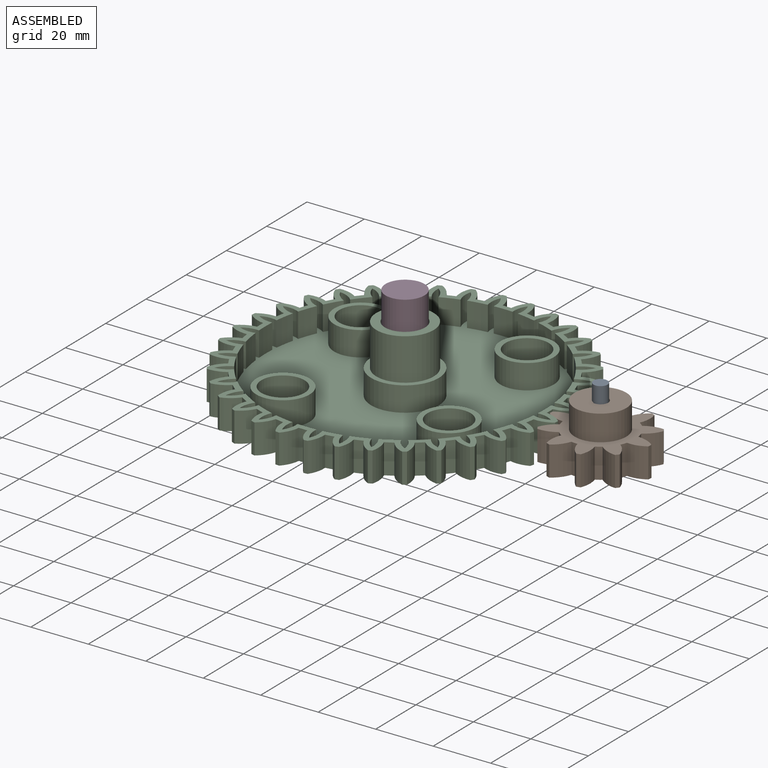
[diagram: assembled view]
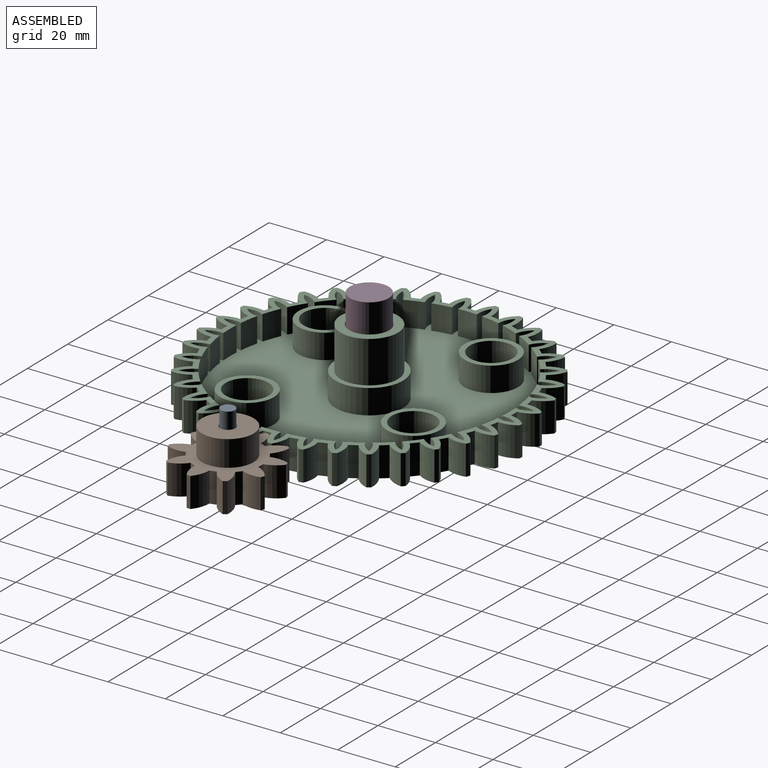
[diagram: assembled view, second angle]
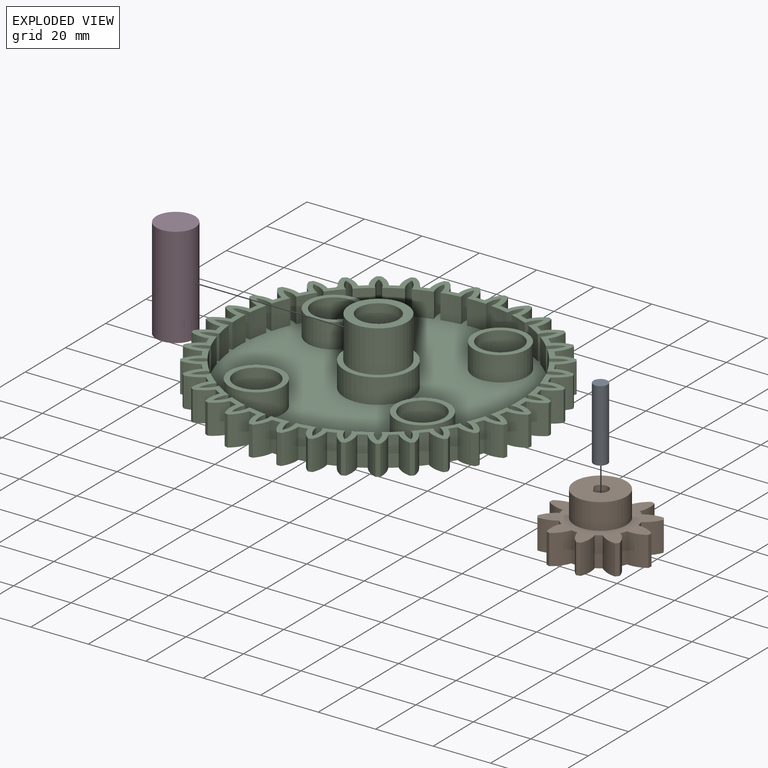
[diagram: exploded view]
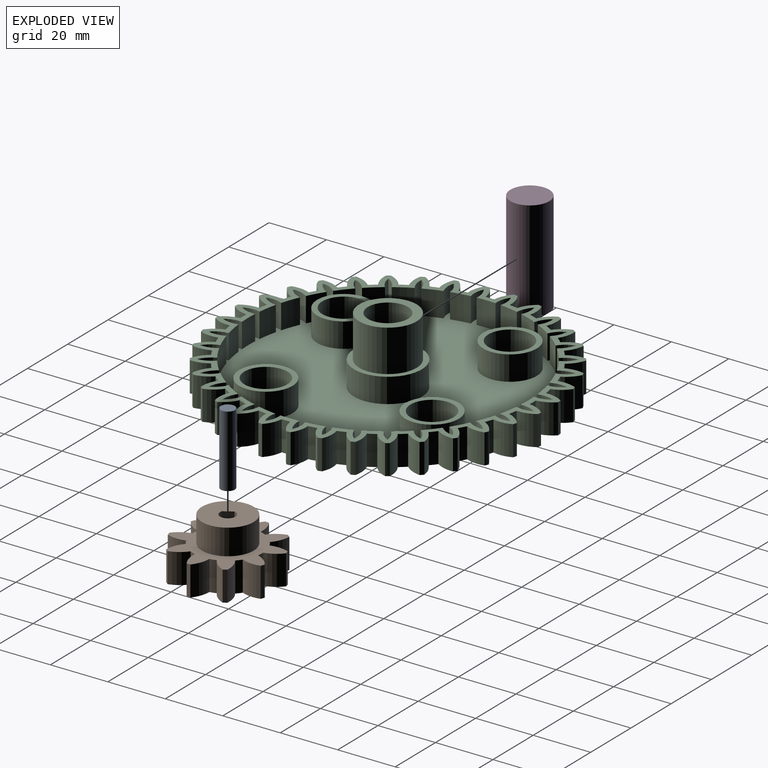
[diagram: exploded view, second angle]
ASSEMBLY  parts=4 mates=2
PART A: 3 faces, bbox 4.9x4.9x25 mm
  f0: cylinder r=2.45mm len=25mm, axis (0,0,-1), area 384.8mm2, adj f1,f2
  f1: plane 4.9x4.9mm, normal (0,0,1), area 18.9mm2, adj f0
  f2: plane 4.9x4.9mm, normal (0,0,-1), area 18.9mm2, adj f0
PART B: 46 faces, bbox 35.3x36x19.4 mm
  f0: cylinder r=2.7mm len=19.4mm, axis (0,0,1), area 251.9mm2, adj f41,f42,f45
  f1: cylinder r=10mm len=10.4mm, axis (0,0,1), area 69.7mm2, adj f2,f40,f42,f43
  f2: cylinder r=12mm len=10.4mm, axis (0,0,1), area 23.4mm2, adj f1,f3,f42,f43
  f3: cylinder r=10mm len=10.4mm, axis (0,0,1), area 69.7mm2, adj f2,f4,f42,f43
  f4: plane 10.4x1.19mm, normal (0.53,-0.85,0), area 14.6mm2, adj f3,f5,f42,f43
  f5: cylinder r=10mm len=10.4mm, axis (0,0,1), area 69.7mm2, adj f4,f6,f42,f43
  f6: cylinder r=12mm len=10.4mm, axis (0,0,1), area 23.4mm2, adj f5,f7,f42,f43
  f7: cylinder r=10mm len=10.4mm, axis (0,0,1), area 69.7mm2, adj f6,f8,f42,f43
  f8: plane 10.4x1.3mm, normal (0.93,-0.37,0), area 14.6mm2, adj f7,f9,f42,f43
  f9: cylinder r=10mm len=10.4mm, axis (0,0,1), area 69.7mm2, adj f8,f10,f42,f43
  f10: cylinder r=12mm len=10.4mm, axis (0,0,1), area 23.4mm2, adj f9,f11,f42,f43
  f11: cylinder r=10mm len=10.4mm, axis (0,0,1), area 69.7mm2, adj f10,f12,f42,f43
  f12: plane 10.4x1.36mm, normal (0.97,0.24,0), area 14.6mm2, adj f11,f13,f42,f43
  f13: cylinder r=10mm len=10.4mm, axis (0,0,1), area 69.7mm2, adj f12,f14,f42,f43
  f14: cylinder r=12mm len=10.4mm, axis (0,0,1), area 23.4mm2, adj f13,f15,f42,f43
  f15: cylinder r=10mm len=10.4mm, axis (0,0,1), area 69.7mm2, adj f14,f16,f42,f43
  f16: plane 10.4x1.07mm, normal (0.64,0.77,0), area 14.6mm2, adj f15,f17,f42,f43
  f17: cylinder r=10mm len=10.4mm, axis (0,0,1), area 69.7mm2, adj f16,f18,f42,f43
  f18: cylinder r=12mm len=10.4mm, axis (0,0,1), area 23.4mm2, adj f17,f19,f42,f43
  f19: cylinder r=10mm len=10.4mm, axis (0,0,1), area 69.7mm2, adj f18,f20,f42,f43
  f20: plane 10.4x1.4mm, normal (0.07,1,0), area 14.6mm2, adj f19,f21,f42,f43
  f21: cylinder r=10mm len=10.4mm, axis (0,0,1), area 69.7mm2, adj f20,f22,f42,f43
  f22: cylinder r=12mm len=10.4mm, axis (0,0,1), area 23.4mm2, adj f21,f23,f42,f43
  f23: cylinder r=10mm len=10.4mm, axis (0,0,1), area 69.7mm2, adj f22,f24,f42,f43
  f24: plane 10.4x1.19mm, normal (-0.53,0.85,0), area 14.6mm2, adj f23,f25,f42,f43
  f25: cylinder r=10mm len=10.4mm, axis (0,0,1), area 69.7mm2, adj f24,f26,f42,f43
  f26: cylinder r=12mm len=10.4mm, axis (0,0,1), area 23.4mm2, adj f25,f27,f42,f43
  f27: cylinder r=10mm len=10.4mm, axis (0,0,1), area 69.7mm2, adj f26,f28,f42,f43
  f28: plane 10.4x1.3mm, normal (-0.93,0.37,0), area 14.6mm2, adj f27,f29,f42,f43
  f29: cylinder r=10mm len=10.4mm, axis (0,0,1), area 69.7mm2, adj f28,f30,f42,f43
  f30: cylinder r=12mm len=10.4mm, axis (0,0,1), area 23.4mm2, adj f29,f31,f42,f43
  f31: cylinder r=10mm len=10.4mm, axis (0,0,1), area 69.7mm2, adj f30,f32,f42,f43
  f32: plane 10.4x1.36mm, normal (-0.97,-0.24,0), area 14.6mm2, adj f31,f33,f42,f43
  f33: cylinder r=10mm len=10.4mm, axis (0,0,1), area 69.7mm2, adj f32,f34,f42,f43
  f34: cylinder r=12mm len=10.4mm, axis (0,0,1), area 23.4mm2, adj f33,f35,f42,f43
  f35: cylinder r=10mm len=10.4mm, axis (0,0,1), area 69.7mm2, adj f34,f36,f42,f43
  f36: plane 10.4x1.07mm, normal (-0.64,-0.77,0), area 14.6mm2, adj f35,f37,f42,f43
  f37: cylinder r=10mm len=10.4mm, axis (0,0,1), area 69.7mm2, adj f36,f38,f42,f43
  f38: cylinder r=12mm len=10.4mm, axis (0,0,1), area 23.4mm2, adj f37,f39,f42,f43
  f39: cylinder r=10mm len=10.4mm, axis (0,0,1), area 69.7mm2, adj f38,f40,f42,f43
  f40: plane 10.4x1.4mm, normal (-0.07,-1,0), area 14.6mm2, adj f1,f39,f42,f43
  f41: plane 19.4x3.36mm, normal (0.93,-0.37,0), area 70.4mm2, adj f0,f42,f45
  f42: plane 36.01x35.27mm, normal (0,0,-1), area 679.2mm2, adj f0,f1,f2,f3,f4,f5,f6,f7
  f43: plane 36.01x35.27mm, normal (0,0,1), area 445.8mm2, adj f1,f2,f3,f4,f5,f6,f7,f8
  f44: cylinder r=9mm len=18mm, axis (0,0,-1), area 508.9mm2, adj f43,f45
  f45: plane 18x18mm, normal (0,0,1), area 233.3mm2, adj f0,f41,f44
PART C: 312 faces, bbox 113x113x25 mm
  f0: plane 23.6x23.6mm, normal (0,0,1), area 123.3mm2, adj f302,f306
  f1: plane 18.6x18.6mm, normal (0,0,1), area 95mm2, adj f186,f301
  f2: plane 18.6x18.6mm, normal (0,0,1), area 95mm2, adj f185,f300
  f3: plane 18.6x18.6mm, normal (0,0,1), area 95mm2, adj f184,f299
  f4: plane 18.6x18.6mm, normal (0,0,1), area 95mm2, adj f188,f303
  f5: cylinder r=10mm len=10.4mm, axis (0,0,-1), area 68.5mm2, adj f6,f187,f189,f190
  f6: cylinder r=50.5mm len=10.4mm, axis (0,0,-1), area 31mm2, adj f5,f7,f189,f190
  f7: cylinder r=10mm len=10.4mm, axis (0,0,-1), area 68.5mm2, adj f6,f8,f189,f190
  f8: plane 10.4x0.69mm, normal (0.99,0.16,0), area 7.3mm2, adj f7,f9,f189,f190
  f9: plane 10.4x0.69mm, normal (0.98,0.19,0), area 7.3mm2, adj f8,f10,f189,f190
  f10: cylinder r=10mm len=10.4mm, axis (0,0,-1), area 68.5mm2, adj f9,f11,f189,f190
  f11: cylinder r=50.5mm len=10.4mm, axis (0,0,-1), area 31mm2, adj f10,f12,f189,f190
  f12: cylinder r=10mm len=10.4mm, axis (0,0,-1), area 68.5mm2, adj f11,f13,f189,f190
  f13: plane 10.4x0.66mm, normal (0.95,0.33,0), area 7.3mm2, adj f12,f14,f189,f190
  f14: plane 10.4x0.65mm, normal (0.93,0.36,0), area 7.3mm2, adj f13,f15,f189,f190
  f15: cylinder r=10mm len=10.4mm, axis (0,0,-1), area 68.5mm2, adj f14,f16,f189,f190
  f16: cylinder r=50.5mm len=10.4mm, axis (0,0,-1), area 31mm2, adj f15,f17,f189,f190
  f17: cylinder r=10mm len=10.4mm, axis (0,0,-1), area 68.5mm2, adj f16,f18,f189,f190
  f18: plane 10.4x0.61mm, normal (0.87,0.48,0), area 7.3mm2, adj f17,f19,f189,f190
  f19: plane 10.4x0.6mm, normal (0.86,0.52,0), area 7.3mm2, adj f18,f20,f189,f190
  f20: cylinder r=10mm len=10.4mm, axis (0,0,-1), area 68.5mm2, adj f19,f21,f189,f190
  f21: cylinder r=50.5mm len=10.4mm, axis (0,0,-1), area 31mm2, adj f20,f22,f189,f190
  f22: cylinder r=10mm len=10.4mm, axis (0,0,-1), area 68.5mm2, adj f21,f23,f189,f190
  f23: plane 10.4x0.54mm, normal (0.78,0.63,0), area 7.3mm2, adj f22,f24,f189,f190
  f24: plane 10.4x0.53mm, normal (0.75,0.66,0), area 7.3mm2, adj f23,f25,f189,f190
  f25: cylinder r=10mm len=10.4mm, axis (0,0,-1), area 68.5mm2, adj f24,f26,f189,f190
  f26: cylinder r=50.5mm len=10.4mm, axis (0,0,-1), area 31mm2, adj f25,f27,f189,f190
  f27: cylinder r=10mm len=10.4mm, axis (0,0,-1), area 68.5mm2, adj f26,f28,f189,f190
  f28: plane 10.4x0.53mm, normal (0.66,0.75,0), area 7.3mm2, adj f27,f29,f189,f190
  f29: plane 10.4x0.54mm, normal (0.63,0.78,0), area 7.3mm2, adj f28,f30,f189,f190
  f30: cylinder r=10mm len=10.4mm, axis (0,0,-1), area 68.5mm2, adj f29,f31,f189,f190
  f31: cylinder r=50.5mm len=10.4mm, axis (0,0,-1), area 31mm2, adj f30,f32,f189,f190
  f32: cylinder r=10mm len=10.4mm, axis (0,0,-1), area 68.5mm2, adj f31,f33,f189,f190
  f33: plane 10.4x0.6mm, normal (0.52,0.86,0), area 7.3mm2, adj f32,f34,f189,f190
  f34: plane 10.4x0.61mm, normal (0.48,0.87,0), area 7.3mm2, adj f33,f35,f189,f190
  f35: cylinder r=10mm len=10.4mm, axis (0,0,-1), area 68.5mm2, adj f34,f36,f189,f190
  f36: cylinder r=50.5mm len=10.4mm, axis (0,0,-1), area 31mm2, adj f35,f37,f189,f190
  f37: cylinder r=10mm len=10.4mm, axis (0,0,-1), area 68.5mm2, adj f36,f38,f189,f190
  f38: plane 10.4x0.65mm, normal (0.36,0.93,0), area 7.3mm2, adj f37,f39,f189,f190
  f39: plane 10.4x0.66mm, normal (0.33,0.95,0), area 7.3mm2, adj f38,f40,f189,f190
  f40: cylinder r=10mm len=10.4mm, axis (0,0,-1), area 68.5mm2, adj f39,f41,f189,f190
  f41: cylinder r=50.5mm len=10.4mm, axis (0,0,-1), area 31mm2, adj f40,f42,f189,f190
  f42: cylinder r=10mm len=10.4mm, axis (0,0,-1), area 68.5mm2, adj f41,f43,f189,f190
  f43: plane 10.4x0.69mm, normal (0.19,0.98,0), area 7.3mm2, adj f42,f44,f189,f190
  f44: plane 10.4x0.69mm, normal (0.16,0.99,0), area 7.3mm2, adj f43,f45,f189,f190
  f45: cylinder r=10mm len=10.4mm, axis (0,0,-1), area 68.5mm2, adj f44,f46,f189,f190
  f46: cylinder r=50.5mm len=10.4mm, axis (0,0,-1), area 31mm2, adj f45,f47,f189,f190
  f47: cylinder r=10mm len=10.4mm, axis (0,0,-1), area 68.5mm2, adj f46,f48,f189,f190
  f48: plane 10.4x0.7mm, normal (0.02,1,0), area 7.3mm2, adj f47,f49,f189,f190
  f49: plane 10.4x0.7mm, normal (-0.02,1,0), area 7.3mm2, adj f48,f50,f189,f190
  f50: cylinder r=10mm len=10.4mm, axis (0,0,-1), area 68.5mm2, adj f49,f51,f189,f190
  f51: cylinder r=50.5mm len=10.4mm, axis (0,0,-1), area 31mm2, adj f50,f52,f189,f190
  f52: cylinder r=10mm len=10.4mm, axis (0,0,-1), area 68.5mm2, adj f51,f53,f189,f190
  f53: plane 10.4x0.69mm, normal (-0.16,0.99,0), area 7.3mm2, adj f52,f54,f189,f190
  f54: plane 10.4x0.69mm, normal (-0.19,0.98,0), area 7.3mm2, adj f53,f55,f189,f190
  f55: cylinder r=10mm len=10.4mm, axis (0,0,-1), area 68.5mm2, adj f54,f56,f189,f190
  f56: cylinder r=50.5mm len=10.4mm, axis (0,0,-1), area 31mm2, adj f55,f57,f189,f190
  f57: cylinder r=10mm len=10.4mm, axis (0,0,-1), area 68.5mm2, adj f56,f58,f189,f190
  f58: plane 10.4x0.66mm, normal (-0.33,0.95,0), area 7.3mm2, adj f57,f59,f189,f190
  f59: plane 10.4x0.65mm, normal (-0.36,0.93,0), area 7.3mm2, adj f58,f60,f189,f190
  f60: cylinder r=10mm len=10.4mm, axis (0,0,-1), area 68.5mm2, adj f59,f61,f189,f190
  f61: cylinder r=50.5mm len=10.4mm, axis (0,0,-1), area 31mm2, adj f60,f62,f189,f190
  f62: cylinder r=10mm len=10.4mm, axis (0,0,-1), area 68.5mm2, adj f61,f63,f189,f190
  f63: plane 10.4x0.61mm, normal (-0.48,0.87,0), area 7.3mm2, adj f62,f64,f189,f190
  f64: plane 10.4x0.6mm, normal (-0.52,0.86,0), area 7.3mm2, adj f63,f65,f189,f190
  f65: cylinder r=10mm len=10.4mm, axis (0,0,-1), area 68.5mm2, adj f64,f66,f189,f190
  f66: cylinder r=50.5mm len=10.4mm, axis (0,0,-1), area 31mm2, adj f65,f67,f189,f190
  f67: cylinder r=10mm len=10.4mm, axis (0,0,-1), area 68.5mm2, adj f66,f68,f189,f190
  f68: plane 10.4x0.54mm, normal (-0.63,0.78,0), area 7.3mm2, adj f67,f69,f189,f190
  f69: plane 10.4x0.53mm, normal (-0.66,0.75,0), area 7.3mm2, adj f68,f70,f189,f190
  f70: cylinder r=10mm len=10.4mm, axis (0,0,-1), area 68.5mm2, adj f69,f71,f189,f190
  f71: cylinder r=50.5mm len=10.4mm, axis (0,0,-1), area 31mm2, adj f70,f72,f189,f190
  f72: cylinder r=10mm len=10.4mm, axis (0,0,-1), area 68.5mm2, adj f71,f73,f189,f190
  f73: plane 10.4x0.53mm, normal (-0.75,0.66,0), area 7.3mm2, adj f72,f74,f189,f190
  f74: plane 10.4x0.54mm, normal (-0.78,0.63,0), area 7.3mm2, adj f73,f75,f189,f190
  f75: cylinder r=10mm len=10.4mm, axis (0,0,-1), area 68.5mm2, adj f74,f76,f189,f190
  f76: cylinder r=50.5mm len=10.4mm, axis (0,0,-1), area 31mm2, adj f75,f77,f189,f190
  f77: cylinder r=10mm len=10.4mm, axis (0,0,-1), area 68.5mm2, adj f76,f78,f189,f190
  f78: plane 10.4x0.6mm, normal (-0.86,0.52,0), area 7.3mm2, adj f77,f79,f189,f190
  f79: plane 10.4x0.61mm, normal (-0.87,0.48,0), area 7.3mm2, adj f78,f80,f189,f190
  f80: cylinder r=10mm len=10.4mm, axis (0,0,-1), area 68.5mm2, adj f79,f81,f189,f190
  f81: cylinder r=50.5mm len=10.4mm, axis (0,0,-1), area 31mm2, adj f80,f82,f189,f190
  f82: cylinder r=10mm len=10.4mm, axis (0,0,-1), area 68.5mm2, adj f81,f83,f189,f190
  f83: plane 10.4x0.65mm, normal (-0.93,0.36,0), area 7.3mm2, adj f82,f84,f189,f190
  f84: plane 10.4x0.66mm, normal (-0.95,0.33,0), area 7.3mm2, adj f83,f85,f189,f190
  f85: cylinder r=10mm len=10.4mm, axis (0,0,-1), area 68.5mm2, adj f84,f86,f189,f190
  f86: cylinder r=50.5mm len=10.4mm, axis (0,0,-1), area 31mm2, adj f85,f87,f189,f190
  f87: cylinder r=10mm len=10.4mm, axis (0,0,-1), area 68.5mm2, adj f86,f88,f189,f190
  f88: plane 10.4x0.69mm, normal (-0.98,0.19,0), area 7.3mm2, adj f87,f89,f189,f190
  f89: plane 10.4x0.69mm, normal (-0.99,0.16,0), area 7.3mm2, adj f88,f90,f189,f190
  f90: cylinder r=10mm len=10.4mm, axis (0,0,-1), area 68.5mm2, adj f89,f91,f189,f190
  f91: cylinder r=50.5mm len=10.4mm, axis (0,0,-1), area 31mm2, adj f90,f92,f189,f190
  f92: cylinder r=10mm len=10.4mm, axis (0,0,-1), area 68.5mm2, adj f91,f93,f189,f190
  f93: plane 10.4x0.7mm, normal (-1,0.02,0), area 7.3mm2, adj f92,f94,f189,f190
  f94: plane 10.4x0.7mm, normal (-1,-0.02,0), area 7.3mm2, adj f93,f95,f189,f190
  f95: cylinder r=10mm len=10.4mm, axis (0,0,-1), area 68.5mm2, adj f94,f96,f189,f190
  f96: cylinder r=50.5mm len=10.4mm, axis (0,0,-1), area 31mm2, adj f95,f97,f189,f190
  f97: cylinder r=10mm len=10.4mm, axis (0,0,-1), area 68.5mm2, adj f96,f98,f189,f190
  f98: plane 10.4x0.69mm, normal (-0.99,-0.16,0), area 7.3mm2, adj f97,f99,f189,f190
  f99: plane 10.4x0.69mm, normal (-0.98,-0.19,0), area 7.3mm2, adj f98,f100,f189,f190
  f100: cylinder r=10mm len=10.4mm, axis (0,0,-1), area 68.5mm2, adj f99,f101,f189,f190
  f101: cylinder r=50.5mm len=10.4mm, axis (0,0,-1), area 31mm2, adj f100,f102,f189,f190
  f102: cylinder r=10mm len=10.4mm, axis (0,0,-1), area 68.5mm2, adj f101,f103,f189,f190
  f103: plane 10.4x0.66mm, normal (-0.95,-0.33,0), area 7.3mm2, adj f102,f104,f189,f190
  f104: plane 10.4x0.65mm, normal (-0.93,-0.36,0), area 7.3mm2, adj f103,f105,f189,f190
  f105: cylinder r=10mm len=10.4mm, axis (0,0,-1), area 68.5mm2, adj f104,f106,f189,f190
  f106: cylinder r=50.5mm len=10.4mm, axis (0,0,-1), area 31mm2, adj f105,f107,f189,f190
  f107: cylinder r=10mm len=10.4mm, axis (0,0,-1), area 68.5mm2, adj f106,f108,f189,f190
  f108: plane 10.4x0.61mm, normal (-0.87,-0.48,0), area 7.3mm2, adj f107,f109,f189,f190
  f109: plane 10.4x0.6mm, normal (-0.86,-0.52,0), area 7.3mm2, adj f108,f110,f189,f190
  f110: cylinder r=10mm len=10.4mm, axis (0,0,-1), area 68.5mm2, adj f109,f111,f189,f190
  f111: cylinder r=50.5mm len=10.4mm, axis (0,0,-1), area 31mm2, adj f110,f112,f189,f190
  f112: cylinder r=10mm len=10.4mm, axis (0,0,-1), area 68.5mm2, adj f111,f113,f189,f190
  f113: plane 10.4x0.54mm, normal (-0.78,-0.63,0), area 7.3mm2, adj f112,f114,f189,f190
  f114: plane 10.4x0.53mm, normal (-0.75,-0.66,0), area 7.3mm2, adj f113,f115,f189,f190
  f115: cylinder r=10mm len=10.4mm, axis (0,0,-1), area 68.5mm2, adj f114,f116,f189,f190
  f116: cylinder r=50.5mm len=10.4mm, axis (0,0,-1), area 31mm2, adj f115,f117,f189,f190
  f117: cylinder r=10mm len=10.4mm, axis (0,0,-1), area 68.5mm2, adj f116,f118,f189,f190
  f118: plane 10.4x0.53mm, normal (-0.66,-0.75,0), area 7.3mm2, adj f117,f119,f189,f190
  f119: plane 10.4x0.54mm, normal (-0.63,-0.78,0), area 7.3mm2, adj f118,f120,f189,f190
  f120: cylinder r=10mm len=10.4mm, axis (0,0,-1), area 68.5mm2, adj f119,f121,f189,f190
  f121: cylinder r=50.5mm len=10.4mm, axis (0,0,-1), area 31mm2, adj f120,f122,f189,f190
  f122: cylinder r=10mm len=10.4mm, axis (0,0,-1), area 68.5mm2, adj f121,f123,f189,f190
  f123: plane 10.4x0.6mm, normal (-0.52,-0.86,0), area 7.3mm2, adj f122,f124,f189,f190
  f124: plane 10.4x0.61mm, normal (-0.48,-0.87,0), area 7.3mm2, adj f123,f125,f189,f190
  f125: cylinder r=10mm len=10.4mm, axis (0,0,-1), area 68.5mm2, adj f124,f126,f189,f190
  f126: cylinder r=50.5mm len=10.4mm, axis (0,0,-1), area 31mm2, adj f125,f127,f189,f190
  f127: cylinder r=10mm len=10.4mm, axis (0,0,-1), area 68.5mm2, adj f126,f128,f189,f190
  f128: plane 10.4x0.65mm, normal (-0.36,-0.93,0), area 7.3mm2, adj f127,f129,f189,f190
  f129: plane 10.4x0.66mm, normal (-0.33,-0.95,0), area 7.3mm2, adj f128,f130,f189,f190
  f130: cylinder r=10mm len=10.4mm, axis (0,0,-1), area 68.5mm2, adj f129,f131,f189,f190
  f131: cylinder r=50.5mm len=10.4mm, axis (0,0,-1), area 31mm2, adj f130,f132,f189,f190
  f132: cylinder r=10mm len=10.4mm, axis (0,0,-1), area 68.5mm2, adj f131,f133,f189,f190
  f133: plane 10.4x0.69mm, normal (-0.19,-0.98,0), area 7.3mm2, adj f132,f134,f189,f190
  f134: plane 10.4x0.69mm, normal (-0.16,-0.99,0), area 7.3mm2, adj f133,f135,f189,f190
  f135: cylinder r=10mm len=10.4mm, axis (0,0,-1), area 68.5mm2, adj f134,f136,f189,f190
  f136: cylinder r=50.5mm len=10.4mm, axis (0,0,-1), area 31mm2, adj f135,f137,f189,f190
  f137: cylinder r=10mm len=10.4mm, axis (0,0,-1), area 68.5mm2, adj f136,f138,f189,f190
  f138: plane 10.4x0.7mm, normal (-0.02,-1,0), area 7.3mm2, adj f137,f139,f189,f190
  f139: plane 10.4x0.7mm, normal (0.02,-1,0), area 7.3mm2, adj f138,f140,f189,f190
  f140: cylinder r=10mm len=10.4mm, axis (0,0,-1), area 68.5mm2, adj f139,f141,f189,f190
  f141: cylinder r=50.5mm len=10.4mm, axis (0,0,-1), area 31mm2, adj f140,f142,f189,f190
  f142: cylinder r=10mm len=10.4mm, axis (0,0,-1), area 68.5mm2, adj f141,f143,f189,f190
  f143: plane 10.4x0.69mm, normal (0.16,-0.99,0), area 7.3mm2, adj f142,f144,f189,f190
  f144: plane 10.4x0.69mm, normal (0.19,-0.98,0), area 7.3mm2, adj f143,f145,f189,f190
  f145: cylinder r=10mm len=10.4mm, axis (0,0,-1), area 68.5mm2, adj f144,f146,f189,f190
  f146: cylinder r=50.5mm len=10.4mm, axis (0,0,-1), area 31mm2, adj f145,f147,f189,f190
  f147: cylinder r=10mm len=10.4mm, axis (0,0,-1), area 68.5mm2, adj f146,f148,f189,f190
  f148: plane 10.4x0.66mm, normal (0.33,-0.95,0), area 7.3mm2, adj f147,f149,f189,f190
  f149: plane 10.4x0.65mm, normal (0.36,-0.93,0), area 7.3mm2, adj f148,f150,f189,f190
  f150: cylinder r=10mm len=10.4mm, axis (0,0,-1), area 68.5mm2, adj f149,f151,f189,f190
  f151: cylinder r=50.5mm len=10.4mm, axis (0,0,-1), area 31mm2, adj f150,f152,f189,f190
  f152: cylinder r=10mm len=10.4mm, axis (0,0,-1), area 68.5mm2, adj f151,f153,f189,f190
  f153: plane 10.4x0.61mm, normal (0.48,-0.87,0), area 7.3mm2, adj f152,f154,f189,f190
  f154: plane 10.4x0.6mm, normal (0.52,-0.86,0), area 7.3mm2, adj f153,f155,f189,f190
  f155: cylinder r=10mm len=10.4mm, axis (0,0,-1), area 68.5mm2, adj f154,f156,f189,f190
  f156: cylinder r=50.5mm len=10.4mm, axis (0,0,-1), area 31mm2, adj f155,f157,f189,f190
  f157: cylinder r=10mm len=10.4mm, axis (0,0,-1), area 68.5mm2, adj f156,f158,f189,f190
  f158: plane 10.4x0.54mm, normal (0.63,-0.78,0), area 7.3mm2, adj f157,f159,f189,f190
  f159: plane 10.4x0.53mm, normal (0.66,-0.75,0), area 7.3mm2, adj f158,f160,f189,f190
  f160: cylinder r=10mm len=10.4mm, axis (0,0,-1), area 68.5mm2, adj f159,f161,f189,f190
  f161: cylinder r=50.5mm len=10.4mm, axis (0,0,-1), area 31mm2, adj f160,f162,f189,f190
  f162: cylinder r=10mm len=10.4mm, axis (0,0,-1), area 68.5mm2, adj f161,f163,f189,f190
  f163: plane 10.4x0.53mm, normal (0.75,-0.66,0), area 7.3mm2, adj f162,f164,f189,f190
  f164: plane 10.4x0.54mm, normal (0.78,-0.63,0), area 7.3mm2, adj f163,f165,f189,f190
  f165: cylinder r=10mm len=10.4mm, axis (0,0,-1), area 68.5mm2, adj f164,f166,f189,f190
  f166: cylinder r=50.5mm len=10.4mm, axis (0,0,-1), area 31mm2, adj f165,f167,f189,f190
  f167: cylinder r=10mm len=10.4mm, axis (0,0,-1), area 68.5mm2, adj f166,f168,f189,f190
  f168: plane 10.4x0.6mm, normal (0.86,-0.52,0), area 7.3mm2, adj f167,f169,f189,f190
  f169: plane 10.4x0.61mm, normal (0.87,-0.48,0), area 7.3mm2, adj f168,f170,f189,f190
  f170: cylinder r=10mm len=10.4mm, axis (0,0,-1), area 68.5mm2, adj f169,f171,f189,f190
  f171: cylinder r=50.5mm len=10.4mm, axis (0,0,-1), area 31mm2, adj f170,f172,f189,f190
  f172: cylinder r=10mm len=10.4mm, axis (0,0,-1), area 68.5mm2, adj f171,f173,f189,f190
  f173: plane 10.4x0.65mm, normal (0.93,-0.36,0), area 7.3mm2, adj f172,f174,f189,f190
  f174: plane 10.4x0.66mm, normal (0.95,-0.33,0), area 7.3mm2, adj f173,f175,f189,f190
  f175: cylinder r=10mm len=10.4mm, axis (0,0,-1), area 68.5mm2, adj f174,f176,f189,f190
  f176: cylinder r=50.5mm len=10.4mm, axis (0,0,-1), area 31mm2, adj f175,f177,f189,f190
  f177: cylinder r=10mm len=10.4mm, axis (0,0,-1), area 68.5mm2, adj f176,f178,f189,f190
  f178: plane 10.4x0.69mm, normal (0.98,-0.19,0), area 7.3mm2, adj f177,f179,f189,f190
  f179: plane 10.4x0.69mm, normal (0.99,-0.16,0), area 7.3mm2, adj f178,f180,f189,f190
  f180: cylinder r=10mm len=10.4mm, axis (0,0,-1), area 68.5mm2, adj f179,f181,f189,f190
  f181: cylinder r=50.5mm len=10.4mm, axis (0,0,-1), area 31mm2, adj f180,f182,f189,f190
  f182: cylinder r=10mm len=10.4mm, axis (0,0,-1), area 68.5mm2, adj f181,f183,f189,f190
  f183: plane 10.4x0.7mm, normal (1,-0.02,0), area 7.3mm2, adj f182,f187,f189,f190
  f184: cylinder r=7.5mm len=15mm, axis (0,0,-1), area 348.7mm2, adj f3,f309
  f185: cylinder r=7.5mm len=15mm, axis (0,0,-1), area 348.7mm2, adj f2,f310
  f186: cylinder r=7.5mm len=15mm, axis (0,0,-1), area 348.7mm2, adj f1,f311
  f187: plane 10.4x0.7mm, normal (1,0.02,0), area 7.3mm2, adj f5,f183,f189,f190
  f188: cylinder r=7.5mm len=15mm, axis (0,0,-1), area 348.7mm2, adj f4,f308
  f189: plane 113.02x113.02mm, normal (0,0,1), area 1167.2mm2, adj f5,f6,f7,f8,f9,f10,f11,f12
  f190: plane 113.02x113.02mm, normal (0,0,-1), area 7419.9mm2, adj f5,f6,f7,f8,f9,f10,f11,f12
  f191: cylinder r=8.2mm len=8.6mm, axis (0,0,-1), area 50.4mm2, adj f189,f192,f298,f304
  f192: cylinder r=48.7mm len=8.6mm, axis (0,0,-1), area 56.4mm2, adj f189,f191,f193,f304
  f193: cylinder r=8.2mm len=8.6mm, axis (0,0,-1), area 50.4mm2, adj f189,f192,f194,f304
  f194: cylinder r=8.2mm len=8.6mm, axis (0,0,-1), area 50.4mm2, adj f189,f193,f195,f304
  f195: cylinder r=48.7mm len=8.6mm, axis (0,0,-1), area 56.4mm2, adj f189,f194,f196,f304
  f196: cylinder r=8.2mm len=8.6mm, axis (0,0,-1), area 50.4mm2, adj f189,f195,f197,f304
  f197: cylinder r=8.2mm len=8.6mm, axis (0,0,-1), area 50.4mm2, adj f189,f196,f198,f304
  f198: cylinder r=48.7mm len=8.6mm, axis (0,0,-1), area 56.4mm2, adj f189,f197,f199,f304
  f199: cylinder r=8.2mm len=8.6mm, axis (0,0,-1), area 50.4mm2, adj f189,f198,f200,f304
  f200: cylinder r=8.2mm len=8.6mm, axis (0,0,-1), area 50.4mm2, adj f189,f199,f201,f304
  f201: cylinder r=48.7mm len=8.6mm, axis (0,0,-1), area 56.4mm2, adj f189,f200,f202,f304
  f202: cylinder r=8.2mm len=8.6mm, axis (0,0,-1), area 50.4mm2, adj f189,f201,f203,f304
  f203: cylinder r=8.2mm len=8.6mm, axis (0,0,-1), area 50.4mm2, adj f189,f202,f204,f304
  f204: cylinder r=48.7mm len=8.6mm, axis (0,0,-1), area 56.4mm2, adj f189,f203,f205,f304
  f205: cylinder r=8.2mm len=8.6mm, axis (0,0,-1), area 50.4mm2, adj f189,f204,f206,f304
  f206: cylinder r=8.2mm len=8.6mm, axis (0,0,-1), area 50.4mm2, adj f189,f205,f207,f304
  f207: cylinder r=48.7mm len=8.6mm, axis (0,0,-1), area 56.4mm2, adj f189,f206,f208,f304
  f208: cylinder r=8.2mm len=8.6mm, axis (0,0,-1), area 50.4mm2, adj f189,f207,f209,f304
  f209: cylinder r=8.2mm len=8.6mm, axis (0,0,-1), area 50.4mm2, adj f189,f208,f210,f304
  f210: cylinder r=48.7mm len=8.6mm, axis (0,0,-1), area 56.4mm2, adj f189,f209,f211,f304
  f211: cylinder r=8.2mm len=8.6mm, axis (0,0,-1), area 50.4mm2, adj f189,f210,f212,f304
  f212: cylinder r=8.2mm len=8.6mm, axis (0,0,-1), area 50.4mm2, adj f189,f211,f213,f304
  f213: cylinder r=48.7mm len=8.6mm, axis (0,0,-1), area 56.4mm2, adj f189,f212,f214,f304
  f214: cylinder r=8.2mm len=8.6mm, axis (0,0,-1), area 50.4mm2, adj f189,f213,f215,f304
  f215: cylinder r=8.2mm len=8.6mm, axis (0,0,-1), area 50.4mm2, adj f189,f214,f216,f304
  f216: cylinder r=48.7mm len=8.6mm, axis (0,0,-1), area 56.4mm2, adj f189,f215,f217,f304
  f217: cylinder r=8.2mm len=8.6mm, axis (0,0,-1), area 50.4mm2, adj f189,f216,f218,f304
  f218: cylinder r=8.2mm len=8.6mm, axis (0,0,-1), area 50.4mm2, adj f189,f217,f219,f304
  f219: cylinder r=48.7mm len=8.6mm, axis (0,0,-1), area 56.4mm2, adj f189,f218,f220,f304
  f220: cylinder r=8.2mm len=8.6mm, axis (0,0,-1), area 50.4mm2, adj f189,f219,f221,f304
  f221: cylinder r=8.2mm len=8.6mm, axis (0,0,-1), area 50.4mm2, adj f189,f220,f222,f304
  f222: cylinder r=48.7mm len=8.6mm, axis (0,0,-1), area 56.4mm2, adj f189,f221,f223,f304
  f223: cylinder r=8.2mm len=8.6mm, axis (0,0,-1), area 50.4mm2, adj f189,f222,f224,f304
  f224: cylinder r=8.2mm len=8.6mm, axis (0,0,-1), area 50.4mm2, adj f189,f223,f225,f304
  f225: cylinder r=48.7mm len=8.6mm, axis (0,0,-1), area 56.4mm2, adj f189,f224,f226,f304
  f226: cylinder r=8.2mm len=8.6mm, axis (0,0,-1), area 50.4mm2, adj f189,f225,f227,f304
  f227: cylinder r=8.2mm len=8.6mm, axis (0,0,-1), area 50.4mm2, adj f189,f226,f228,f304
  f228: cylinder r=48.7mm len=8.6mm, axis (0,0,-1), area 56.4mm2, adj f189,f227,f229,f304
  f229: cylinder r=8.2mm len=8.6mm, axis (0,0,-1), area 50.4mm2, adj f189,f228,f230,f304
  f230: cylinder r=8.2mm len=8.6mm, axis (0,0,-1), area 50.4mm2, adj f189,f229,f231,f304
  f231: cylinder r=48.7mm len=8.6mm, axis (0,0,-1), area 56.4mm2, adj f189,f230,f232,f304
  f232: cylinder r=8.2mm len=8.6mm, axis (0,0,-1), area 50.4mm2, adj f189,f231,f233,f304
  f233: cylinder r=8.2mm len=8.6mm, axis (0,0,-1), area 50.4mm2, adj f189,f232,f234,f304
  f234: cylinder r=48.7mm len=8.6mm, axis (0,0,-1), area 56.4mm2, adj f189,f233,f235,f304
  f235: cylinder r=8.2mm len=8.6mm, axis (0,0,-1), area 50.4mm2, adj f189,f234,f236,f304
  f236: cylinder r=8.2mm len=8.6mm, axis (0,0,-1), area 50.4mm2, adj f189,f235,f237,f304
  f237: cylinder r=48.7mm len=8.6mm, axis (0,0,-1), area 56.4mm2, adj f189,f236,f238,f304
  f238: cylinder r=8.2mm len=8.6mm, axis (0,0,-1), area 50.4mm2, adj f189,f237,f239,f304
  f239: cylinder r=8.2mm len=8.6mm, axis (0,0,-1), area 50.4mm2, adj f189,f238,f240,f304
  f240: cylinder r=48.7mm len=8.6mm, axis (0,0,-1), area 56.4mm2, adj f189,f239,f241,f304
  f241: cylinder r=8.2mm len=8.6mm, axis (0,0,-1), area 50.4mm2, adj f189,f240,f242,f304
  f242: cylinder r=8.2mm len=8.6mm, axis (0,0,-1), area 50.4mm2, adj f189,f241,f243,f304
  f243: cylinder r=48.7mm len=8.6mm, axis (0,0,-1), area 56.4mm2, adj f189,f242,f244,f304
  f244: cylinder r=8.2mm len=8.6mm, axis (0,0,-1), area 50.4mm2, adj f189,f243,f245,f304
  f245: cylinder r=8.2mm len=8.6mm, axis (0,0,-1), area 50.4mm2, adj f189,f244,f246,f304
  f246: cylinder r=48.7mm len=8.6mm, axis (0,0,-1), area 56.4mm2, adj f189,f245,f247,f304
  f247: cylinder r=8.2mm len=8.6mm, axis (0,0,-1), area 50.4mm2, adj f189,f246,f248,f304
  f248: cylinder r=8.2mm len=8.6mm, axis (0,0,-1), area 50.4mm2, adj f189,f247,f249,f304
  f249: cylinder r=48.7mm len=8.6mm, axis (0,0,-1), area 56.4mm2, adj f189,f248,f250,f304
  f250: cylinder r=8.2mm len=8.6mm, axis (0,0,-1), area 50.4mm2, adj f189,f249,f251,f304
  f251: cylinder r=8.2mm len=8.6mm, axis (0,0,-1), area 50.4mm2, adj f189,f250,f252,f304
  f252: cylinder r=48.7mm len=8.6mm, axis (0,0,-1), area 56.4mm2, adj f189,f251,f253,f304
  f253: cylinder r=8.2mm len=8.6mm, axis (0,0,-1), area 50.4mm2, adj f189,f252,f254,f304
  f254: cylinder r=8.2mm len=8.6mm, axis (0,0,-1), area 50.4mm2, adj f189,f253,f255,f304
  f255: cylinder r=48.7mm len=8.6mm, axis (0,0,-1), area 56.4mm2, adj f189,f254,f256,f304
  f256: cylinder r=8.2mm len=8.6mm, axis (0,0,-1), area 50.4mm2, adj f189,f255,f257,f304
  f257: cylinder r=8.2mm len=8.6mm, axis (0,0,-1), area 50.4mm2, adj f189,f256,f258,f304
  f258: cylinder r=48.7mm len=8.6mm, axis (0,0,-1), area 56.4mm2, adj f189,f257,f259,f304
  f259: cylinder r=8.2mm len=8.6mm, axis (0,0,-1), area 50.4mm2, adj f189,f258,f260,f304
  f260: cylinder r=8.2mm len=8.6mm, axis (0,0,-1), area 50.4mm2, adj f189,f259,f261,f304
  f261: cylinder r=48.7mm len=8.6mm, axis (0,0,-1), area 56.4mm2, adj f189,f260,f262,f304
  f262: cylinder r=8.2mm len=8.6mm, axis (0,0,-1), area 50.4mm2, adj f189,f261,f263,f304
  f263: cylinder r=8.2mm len=8.6mm, axis (0,0,-1), area 50.4mm2, adj f189,f262,f264,f304
  f264: cylinder r=48.7mm len=8.6mm, axis (0,0,-1), area 56.4mm2, adj f189,f263,f265,f304
  f265: cylinder r=8.2mm len=8.6mm, axis (0,0,-1), area 50.4mm2, adj f189,f264,f266,f304
  f266: cylinder r=8.2mm len=8.6mm, axis (0,0,-1), area 50.4mm2, adj f189,f265,f267,f304
  f267: cylinder r=48.7mm len=8.6mm, axis (0,0,-1), area 56.4mm2, adj f189,f266,f268,f304
  f268: cylinder r=8.2mm len=8.6mm, axis (0,0,-1), area 50.4mm2, adj f189,f267,f269,f304
  f269: cylinder r=8.2mm len=8.6mm, axis (0,0,-1), area 50.4mm2, adj f189,f268,f270,f304
  f270: cylinder r=48.7mm len=8.6mm, axis (0,0,-1), area 56.4mm2, adj f189,f269,f271,f304
  f271: cylinder r=8.2mm len=8.6mm, axis (0,0,-1), area 50.4mm2, adj f189,f270,f272,f304
  f272: cylinder r=8.2mm len=8.6mm, axis (0,0,-1), area 50.4mm2, adj f189,f271,f273,f304
  f273: cylinder r=48.7mm len=8.6mm, axis (0,0,-1), area 56.4mm2, adj f189,f272,f274,f304
  f274: cylinder r=8.2mm len=8.6mm, axis (0,0,-1), area 50.4mm2, adj f189,f273,f275,f304
  f275: cylinder r=8.2mm len=8.6mm, axis (0,0,-1), area 50.4mm2, adj f189,f274,f276,f304
  f276: cylinder r=48.7mm len=8.6mm, axis (0,0,-1), area 56.4mm2, adj f189,f275,f277,f304
  f277: cylinder r=8.2mm len=8.6mm, axis (0,0,-1), area 50.4mm2, adj f189,f276,f278,f304
  f278: cylinder r=8.2mm len=8.6mm, axis (0,0,-1), area 50.4mm2, adj f189,f277,f279,f304
  f279: cylinder r=48.7mm len=8.6mm, axis (0,0,-1), area 56.4mm2, adj f189,f278,f280,f304
  f280: cylinder r=8.2mm len=8.6mm, axis (0,0,-1), area 50.4mm2, adj f189,f279,f281,f304
  f281: cylinder r=8.2mm len=8.6mm, axis (0,0,-1), area 50.4mm2, adj f189,f280,f282,f304
  f282: cylinder r=48.7mm len=8.6mm, axis (0,0,-1), area 56.4mm2, adj f189,f281,f283,f304
  f283: cylinder r=8.2mm len=8.6mm, axis (0,0,-1), area 50.4mm2, adj f189,f282,f284,f304
  f284: cylinder r=8.2mm len=8.6mm, axis (0,0,-1), area 50.4mm2, adj f189,f283,f285,f304
  f285: cylinder r=48.7mm len=8.6mm, axis (0,0,-1), area 56.4mm2, adj f189,f284,f286,f304
  f286: cylinder r=8.2mm len=8.6mm, axis (0,0,-1), area 50.4mm2, adj f189,f285,f287,f304
  f287: cylinder r=8.2mm len=8.6mm, axis (0,0,-1), area 50.4mm2, adj f189,f286,f288,f304
  f288: cylinder r=48.7mm len=8.6mm, axis (0,0,-1), area 56.4mm2, adj f189,f287,f289,f304
  f289: cylinder r=8.2mm len=8.6mm, axis (0,0,-1), area 50.4mm2, adj f189,f288,f290,f304
  f290: cylinder r=8.2mm len=8.6mm, axis (0,0,-1), area 50.4mm2, adj f189,f289,f291,f304
  f291: cylinder r=48.7mm len=8.6mm, axis (0,0,-1), area 56.4mm2, adj f189,f290,f292,f304
  f292: cylinder r=8.2mm len=8.6mm, axis (0,0,-1), area 50.4mm2, adj f189,f291,f293,f304
  f293: cylinder r=8.2mm len=8.6mm, axis (0,0,-1), area 50.4mm2, adj f189,f292,f294,f304
  f294: cylinder r=48.7mm len=8.6mm, axis (0,0,-1), area 56.4mm2, adj f189,f293,f295,f304
  f295: cylinder r=8.2mm len=8.6mm, axis (0,0,-1), area 50.4mm2, adj f189,f294,f296,f304
  f296: cylinder r=8.2mm len=8.6mm, axis (0,0,-1), area 50.4mm2, adj f189,f295,f297,f304
  f297: cylinder r=48.7mm len=8.6mm, axis (0,0,-1), area 56.4mm2, adj f189,f296,f298,f304
  f298: cylinder r=8.2mm len=8.6mm, axis (0,0,-1), area 50.4mm2, adj f189,f191,f297,f304
  f299: cylinder r=9.3mm len=18.6mm, axis (0,0,-1), area 502.5mm2, adj f3,f304
  f300: cylinder r=9.3mm len=18.6mm, axis (0,0,-1), area 502.5mm2, adj f2,f304
  f301: cylinder r=9.3mm len=18.6mm, axis (0,0,-1), area 502.5mm2, adj f1,f304
  f302: cylinder r=11.8mm len=23.6mm, axis (0,0,-1), area 637.6mm2, adj f0,f304
  f303: cylinder r=9.3mm len=18.6mm, axis (0,0,-1), area 502.5mm2, adj f4,f304
  f304: plane 108.7x108.7mm, normal (0,0,1), area 6267.8mm2, adj f191,f192,f193,f194,f195,f196,f197,f198
  f305: cylinder r=7mm len=25mm, axis (0,0,-1), area 1099.6mm2, adj f190,f307
  f306: cylinder r=10mm len=20mm, axis (0,0,-1), area 917.3mm2, adj f0,f307
  f307: plane 20x20mm, normal (0,0,1), area 160.2mm2, adj f305,f306
  f308: torus R=10.5mm, axis (0,0,1), area 254.3mm2, adj f188,f190
  f309: torus R=10.5mm, axis (0,0,1), area 254.3mm2, adj f184,f190
  f310: torus R=10.5mm, axis (0,0,1), area 254.3mm2, adj f185,f190
  f311: torus R=10.5mm, axis (0,0,1), area 254.3mm2, adj f186,f190
PART D: 3 faces, bbox 13.5x13.5x35 mm
  f0: cylinder r=6.77mm len=35mm, axis (0,0,1), area 1488.9mm2, adj f1,f2
  f1: plane 13.54x13.54mm, normal (0,0,-1), area 144mm2, adj f0
  f2: plane 13.54x13.54mm, normal (0,0,1), area 144mm2, adj f0
PLACE A t=(-12.66,-66.95,-8.62)mm fixed
PLACE B rot(axis=(0,0,1),54.5deg) t=(22.88,-54.86,-8.62)mm
PLACE C rot(axis=(0,0,1),144.9deg) t=(-92.08,-11.75,-8.22)mm
PLACE D t=(-41.93,-48.39,1.78)mm fixed
MATE revolute B.f0 <-> A.f0  axis (0,0,-1) through (26.85,-49.46,-8.62)mm
MATE revolute C.f6 <-> D.f0  axis (0,0,-1) through (-41.93,-48.39,-8.22)mm
